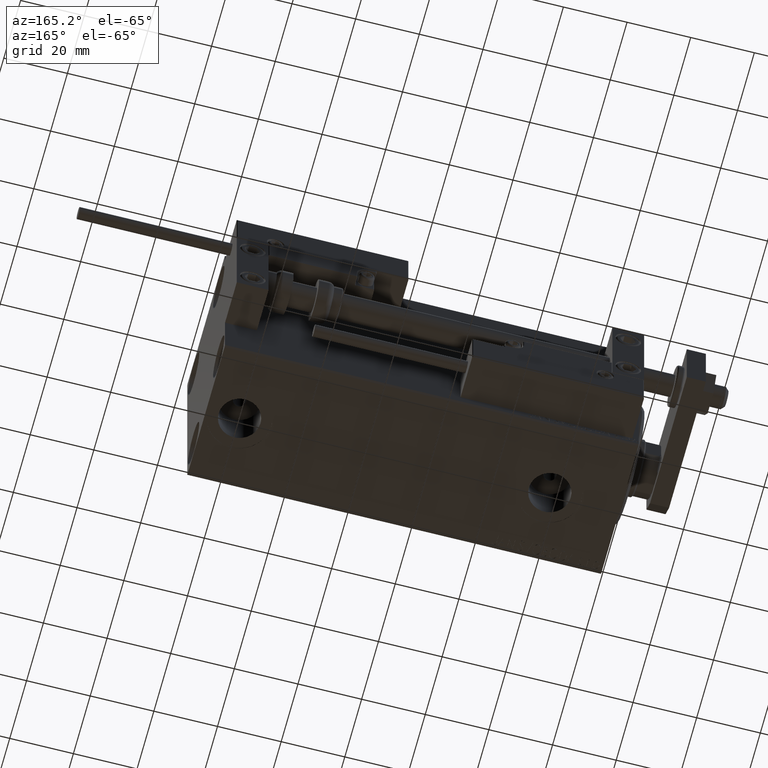
[diagram: clean part render]
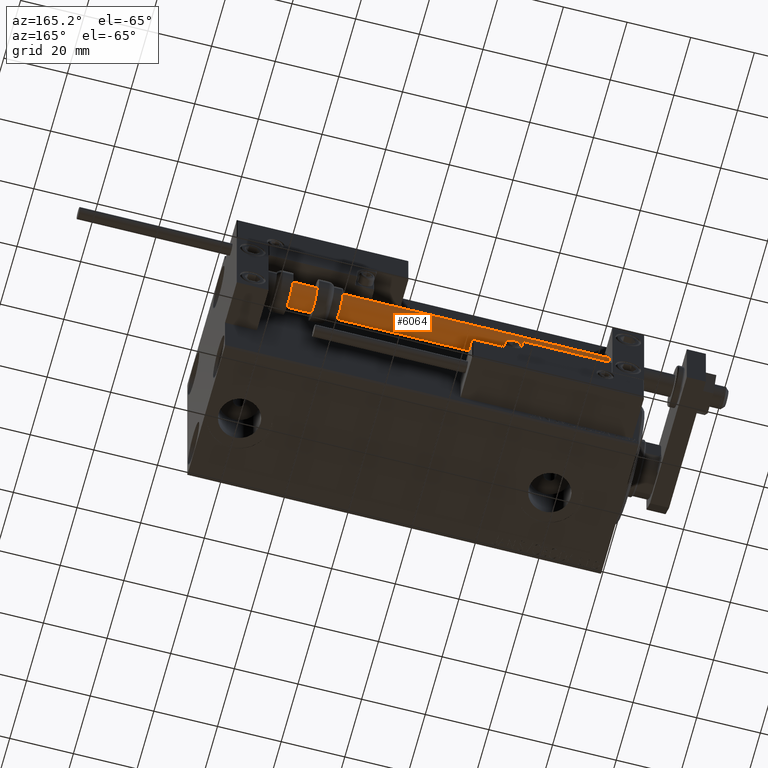
[diagram: same view with one face highlighted and labeled with its STEP entity id]
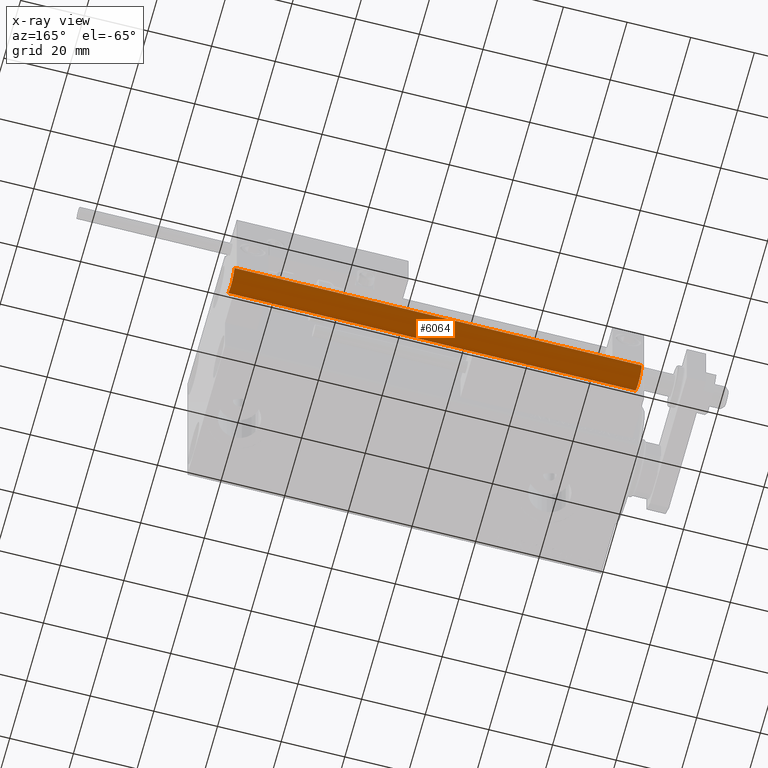
[diagram: x-ray of the same camera — body ghosted, the highlighted face saturated]
A machine part, auxiliary view. The second image highlights one B-rep face of the part: STEP entity #6064.
The next image is the same camera in x-ray: the body ghosted, the highlighted face saturated — about 1% of this face is hidden behind the body in this view.
In plain terms, the highlighted cylindrical surface (edge-blend (fillet) strip) has radius 4 mm, axis along (-1, 0, 0).
Its self-contained STEP definition (entity closure, byte-faithful):
#525 = CYLINDRICAL_SURFACE ( 'NONE', #2093, 4.000000000000000000 ) ;
#878 = CARTESIAN_POINT ( 'NONE',  ( 4.000000000000000000, 4.898587196589412829E-16, 130.0000000000000000 ) ) ;
#1022 = EDGE_LOOP ( 'NONE', ( #1408, #11833, #50037, #48792 ) ) ;
#1408 = ORIENTED_EDGE ( 'NONE', *, *, #42050, .F. ) ;
#2093 = AXIS2_PLACEMENT_3D ( 'NONE', #39448, #16567, #32066 ) ;
#2645 = DIRECTION ( 'NONE',  ( 0.000000000000000000, 0.000000000000000000, 1.000000000000000000 ) ) ;
#2894 = DIRECTION ( 'NONE',  ( 1.000000000000000000, 0.000000000000000000, 0.000000000000000000 ) ) ;
#4851 = FACE_OUTER_BOUND ( 'NONE', #1022, .T. ) ;
#6064 = ADVANCED_FACE ( 'NONE', ( #4851 ), #525, .T. ) ;
#6706 = VERTEX_POINT ( 'NONE', #16119 ) ;
#8112 = CARTESIAN_POINT ( 'NONE',  ( 4.000000000000000000, 4.898587196589412829E-16, 130.0000000000000000 ) ) ;
#11833 = ORIENTED_EDGE ( 'NONE', *, *, #50108, .F. ) ;
#15033 = CARTESIAN_POINT ( 'NONE',  ( -4.000000000000000000, 0.000000000000000000, 130.0000000000000000 ) ) ;
#15762 = LINE ( 'NONE', #8112, #39648 ) ;
#16026 = EDGE_CURVE ( 'NONE', #27763, #6706, #22478, .T. ) ;
#16119 = CARTESIAN_POINT ( 'NONE',  ( -4.000000000000000000, 0.000000000000000000, 2.000000000000029310 ) ) ;
#16567 = DIRECTION ( 'NONE',  ( -0.000000000000000000, -0.000000000000000000, -1.000000000000000000 ) ) ;
#17664 = VECTOR ( 'NONE', #37994, 1000.000000000000000 ) ;
#18921 = CARTESIAN_POINT ( 'NONE',  ( -4.000000000000000000, 0.000000000000000000, 130.0000000000000000 ) ) ;
#19643 = AXIS2_PLACEMENT_3D ( 'NONE', #41839, #2645, #2894 ) ;
#21657 = DIRECTION ( 'NONE',  ( -0.000000000000000000, -0.000000000000000000, 1.000000000000000000 ) ) ;
#22478 = LINE ( 'NONE', #18921, #17664 ) ;
#23636 = DIRECTION ( 'NONE',  ( -0.000000000000000000, -0.000000000000000000, -1.000000000000000000 ) ) ;
#23970 = CARTESIAN_POINT ( 'NONE',  ( 0.000000000000000000, 0.000000000000000000, 2.000000000000029310 ) ) ;
#26338 = VERTEX_POINT ( 'NONE', #878 ) ;
#27763 = VERTEX_POINT ( 'NONE', #15033 ) ;
#31555 = CARTESIAN_POINT ( 'NONE',  ( 4.000000000000000000, 4.898587196589412829E-16, 2.000000000000029310 ) ) ;
#32066 = DIRECTION ( 'NONE',  ( -1.000000000000000000, 0.000000000000000000, 0.000000000000000000 ) ) ;
#32605 = DIRECTION ( 'NONE',  ( 1.000000000000000000, 0.000000000000000000, 0.000000000000000000 ) ) ;
#37994 = DIRECTION ( 'NONE',  ( -0.000000000000000000, -0.000000000000000000, -1.000000000000000000 ) ) ;
#39448 = CARTESIAN_POINT ( 'NONE',  ( 0.000000000000000000, 0.000000000000000000, 130.0000000000000000 ) ) ;
#39648 = VECTOR ( 'NONE', #23636, 1000.000000000000000 ) ;
#40526 = AXIS2_PLACEMENT_3D ( 'NONE', #23970, #21657, #32605 ) ;
#40782 = CIRCLE ( 'NONE', #19643, 4.000000000000000000 ) ;
#41839 = CARTESIAN_POINT ( 'NONE',  ( 0.000000000000000000, 0.000000000000000000, 130.0000000000000000 ) ) ;
#42050 = EDGE_CURVE ( 'NONE', #26338, #43982, #15762, .T. ) ;
#42794 = EDGE_CURVE ( 'NONE', #6706, #43982, #47825, .T. ) ;
#43982 = VERTEX_POINT ( 'NONE', #31555 ) ;
#47825 = CIRCLE ( 'NONE', #40526, 4.000000000000000000 ) ;
#48792 = ORIENTED_EDGE ( 'NONE', *, *, #42794, .T. ) ;
#50037 = ORIENTED_EDGE ( 'NONE', *, *, #16026, .T. ) ;
#50108 = EDGE_CURVE ( 'NONE', #27763, #26338, #40782, .T. ) ;